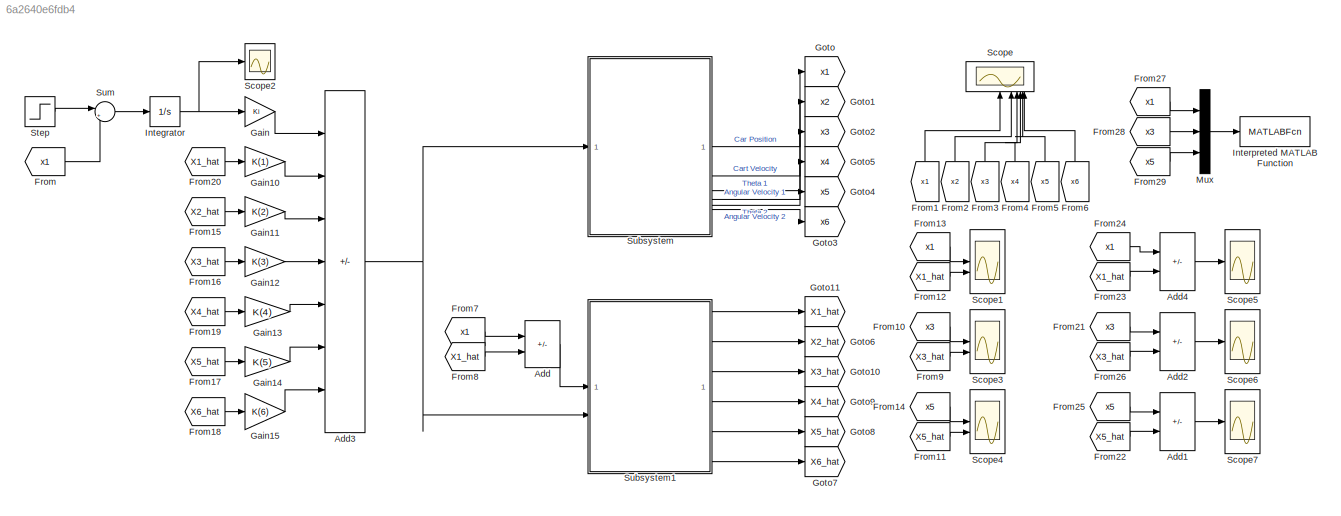
MODEL slx_6a2640e6fdb4
KIND model
CONFIG AbsTol = auto
CONFIG EnableMultiTasking = off
CONFIG FixedStep = auto
CONFIG MaxStep = auto
CONFIG MinStep = auto
CONFIG RelTol = 1e-3
CONFIG SampleTimeConstraint = Unconstrained
CONFIG SolverName = VariableStepAuto
CONFIG StartTime = 0.0
CONFIG StopTime = 10
BLOCK [Sum] Add
  IconShape = rectangular
  Inputs = +-
BLOCK [Sum] Add1
  IconShape = rectangular
  Inputs = +-
BLOCK [Sum] Add2
  IconShape = rectangular
  Inputs = +-
BLOCK [Sum] Add3
  IconShape = rectangular
  Inputs = +------
BLOCK [Sum] Add4
  IconShape = rectangular
  Inputs = +-
BLOCK [From] From
  GotoTag = x1
BLOCK [From] From1
  GotoTag = x1
  NameLocation = right
BLOCK [From] From10
  GotoTag = x3
BLOCK [From] From11
  GotoTag = X5_hat
BLOCK [From] From12
  GotoTag = X1_hat
BLOCK [From] From13
  GotoTag = x1
BLOCK [From] From14
  GotoTag = x5
BLOCK [From] From15
  GotoTag = X2_hat
BLOCK [From] From16
  GotoTag = X3_hat
BLOCK [From] From17
  GotoTag = X5_hat
BLOCK [From] From18
  GotoTag = X6_hat
BLOCK [From] From19
  GotoTag = X4_hat
BLOCK [From] From2
  GotoTag = x2
  NameLocation = right
BLOCK [From] From20
  GotoTag = X1_hat
BLOCK [From] From21
  GotoTag = x3
BLOCK [From] From22
  GotoTag = X5_hat
BLOCK [From] From23
  GotoTag = X1_hat
BLOCK [From] From24
  GotoTag = x1
BLOCK [From] From25
  GotoTag = x5
BLOCK [From] From26
  GotoTag = X3_hat
BLOCK [From] From27
  GotoTag = x1
BLOCK [From] From28
  GotoTag = x3
BLOCK [From] From29
  GotoTag = x5
BLOCK [From] From3
  GotoTag = x3
  NameLocation = right
BLOCK [From] From4
  GotoTag = x4
  NameLocation = right
BLOCK [From] From5
  GotoTag = x5
  NameLocation = right
BLOCK [From] From6
  GotoTag = x6
  NameLocation = right
BLOCK [From] From7
  GotoTag = x1
BLOCK [From] From8
  GotoTag = X1_hat
BLOCK [From] From9
  GotoTag = X3_hat
BLOCK [Gain] Gain
  Gain = Ki
BLOCK [Gain] Gain10
  Gain = K(1)
BLOCK [Gain] Gain11
  Gain = K(2)
BLOCK [Gain] Gain12
  Gain = K(3)
BLOCK [Gain] Gain13
  Gain = K(4)
BLOCK [Gain] Gain14
  Gain = K(5)
BLOCK [Gain] Gain15
  Gain = K(6)
BLOCK [Goto] Goto
  GotoTag = x1
BLOCK [Goto] Goto1
  GotoTag = x2
BLOCK [Goto] Goto10
  GotoTag = X3_hat
BLOCK [Goto] Goto11
  GotoTag = X1_hat
BLOCK [Goto] Goto2
  GotoTag = x3
BLOCK [Goto] Goto3
  GotoTag = x6
BLOCK [Goto] Goto4
  GotoTag = x5
BLOCK [Goto] Goto5
  GotoTag = x4
BLOCK [Goto] Goto6
  GotoTag = X2_hat
BLOCK [Goto] Goto7
  GotoTag = X6_hat
BLOCK [Goto] Goto8
  GotoTag = X5_hat
BLOCK [Goto] Goto9
  GotoTag = X4_hat
BLOCK [Integrator] Integrator
BLOCK [MATLABFcn] Interpreted MATLAB Function
  MATLABFcn = call
  OutputDimensions = 0
BLOCK [Mux] Mux
  DisplayOption = bar
  Inputs = 3
BLOCK [Scope] Scope
  Floating = off
  NameLocation = right
  NumInputPorts = 6
  ScopeSpecificationString = Simulink.scopes.TimeScopeBlockCfg('CurrentConfiguration', extmgr.ConfigurationSet(extmgr.Configuration('Core','General UI',true),extmgr.Configuration('Core','Source UI',true),extmgr.Configuration('Sources','WiredSimulink',true),extmgr.Configuration('Visuals','Time Domain',true,'SerializedDisplays',{struct('MinYLimReal','-2.59465','MaxYLimReal','3.83249','YLabelReal','','MinYLimMag','0.00000','MaxY...<+4956ch>
BLOCK [Scope] Scope1
  Floating = off
  NumInputPorts = 2
  ScopeSpecificationString = Simulink.scopes.TimeScopeBlockCfg('CurrentConfiguration', extmgr.ConfigurationSet(extmgr.Configuration('Core','General UI',true),extmgr.Configuration('Core','Source UI',true),extmgr.Configuration('Sources','WiredSimulink',true,'DataLoggingVariableName','ScopeData1'),extmgr.Configuration('Visuals','Time Domain',true,'SerializedDisplays',{struct('MinYLimReal','-0.03406','MaxYLimReal','0.02335','YLab...<+1487ch>
BLOCK [Scope] Scope2
  Floating = off
  NumInputPorts = 1
  ScopeSpecificationString = Simulink.scopes.TimeScopeBlockCfg('CurrentConfiguration', extmgr.ConfigurationSet(extmgr.Configuration('Core','General UI',true),extmgr.Configuration('Core','Source UI',true),extmgr.Configuration('Sources','WiredSimulink',true,'DataLoggingVariableName','ScopeData6'),extmgr.Configuration('Visuals','Time Domain',true,'SerializedDisplays',{struct('MinYLimReal','-0.24783','MaxYLimReal','2.23048','YLab...<+1468ch>
BLOCK [Scope] Scope3
  Floating = off
  NumInputPorts = 2
  ScopeSpecificationString = Simulink.scopes.TimeScopeBlockCfg('CurrentConfiguration', extmgr.ConfigurationSet(extmgr.Configuration('Core','General UI',true),extmgr.Configuration('Core','Source UI',true),extmgr.Configuration('Sources','WiredSimulink',true,'DataLoggingVariableName','ScopeData1'),extmgr.Configuration('Visuals','Time Domain',true,'SerializedDisplays',{struct('MinYLimReal','-6.63362','MaxYLimReal','4.61203','YLab...<+1482ch>
BLOCK [Scope] Scope4
  Floating = off
  NumInputPorts = 2
  ScopeSpecificationString = Simulink.scopes.TimeScopeBlockCfg('CurrentConfiguration', extmgr.ConfigurationSet(extmgr.Configuration('Core','General UI',true),extmgr.Configuration('Core','Source UI',true),extmgr.Configuration('Sources','WiredSimulink',true,'DataLoggingVariableName','ScopeData2'),extmgr.Configuration('Visuals','Time Domain',true,'SerializedDisplays',{struct('MinYLimReal','-3.08664','MaxYLimReal','4.06296','YLab...<+1482ch>
BLOCK [Scope] Scope5
  Floating = off
  NumInputPorts = 1
  ScopeSpecificationString = Simulink.scopes.TimeScopeBlockCfg('CurrentConfiguration', extmgr.ConfigurationSet(extmgr.Configuration('Core','General UI',true),extmgr.Configuration('Core','Source UI',true),extmgr.Configuration('Sources','WiredSimulink',true,'DataLoggingVariableName','ScopeData3'),extmgr.Configuration('Visuals','Time Domain',true,'SerializedDisplays',{struct('MinYLimReal','-0.00045','MaxYLimReal','0.00116','YLab...<+1462ch>
BLOCK [Scope] Scope6
  Floating = off
  NumInputPorts = 1
  ScopeSpecificationString = Simulink.scopes.TimeScopeBlockCfg('CurrentConfiguration', extmgr.ConfigurationSet(extmgr.Configuration('Core','General UI',true),extmgr.Configuration('Core','Source UI',true),extmgr.Configuration('Sources','WiredSimulink',true,'DataLoggingVariableName','ScopeData4'),extmgr.Configuration('Visuals','Time Domain',true,'SerializedDisplays',{struct('MinYLimReal','-0.00394','MaxYLimReal','0.00372','YLab...<+1512ch>
BLOCK [Scope] Scope7
  Floating = off
  NumInputPorts = 1
  ScopeSpecificationString = Simulink.scopes.TimeScopeBlockCfg('CurrentConfiguration', extmgr.ConfigurationSet(extmgr.Configuration('Core','General UI',true),extmgr.Configuration('Core','Source UI',true),extmgr.Configuration('Sources','WiredSimulink',true,'DataLoggingVariableName','ScopeData5'),extmgr.Configuration('Visuals','Time Domain',true,'SerializedDisplays',{struct('MinYLimReal','-0.00394','MaxYLimReal','0.00372','YLab...<+1512ch>
BLOCK [Step] Step
  SampleTime = 0
  Time = 0
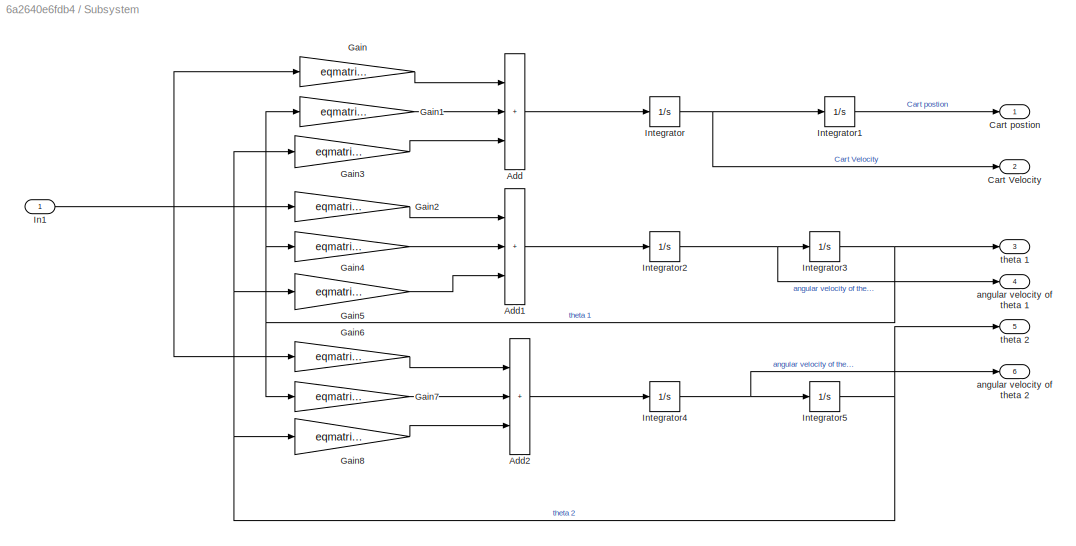
BLOCK [SubSystem] Subsystem
BLOCK [Sum] Subsystem/Add
  IconShape = rectangular
  Inputs = +++
BLOCK [Sum] Subsystem/Add1
  IconShape = rectangular
  Inputs = +++
BLOCK [Sum] Subsystem/Add2
  IconShape = rectangular
  Inputs = +++
BLOCK [Outport] Subsystem/Cart Velocity
  Port = 2
BLOCK [Outport] Subsystem/Cart postion
BLOCK [Gain] Subsystem/Gain
  Gain = eqmatrix(1,1)
BLOCK [Gain] Subsystem/Gain1
  Gain = eqmatrix(1,2)
BLOCK [Gain] Subsystem/Gain2
  Gain = eqmatrix(2,1)
BLOCK [Gain] Subsystem/Gain3
  Gain = eqmatrix(1,3)
BLOCK [Gain] Subsystem/Gain4
  Gain = eqmatrix(2,2)
BLOCK [Gain] Subsystem/Gain5
  Gain = eqmatrix(2,3)
BLOCK [Gain] Subsystem/Gain6
  Gain = eqmatrix(3,1)
BLOCK [Gain] Subsystem/Gain7
  Gain = eqmatrix(3,2)
BLOCK [Gain] Subsystem/Gain8
  Gain = eqmatrix(3,3)
BLOCK [Inport] Subsystem/In1
BLOCK [Integrator] Subsystem/Integrator
BLOCK [Integrator] Subsystem/Integrator1
BLOCK [Integrator] Subsystem/Integrator2
BLOCK [Integrator] Subsystem/Integrator3
BLOCK [Integrator] Subsystem/Integrator4
BLOCK [Integrator] Subsystem/Integrator5
BLOCK [Outport] Subsystem/angular velocity of theta 1
  Port = 4
BLOCK [Outport] Subsystem/angular velocity of theta 2
  Port = 6
BLOCK [Outport] Subsystem/theta 1
  Port = 3
BLOCK [Outport] Subsystem/theta 2
  Port = 5
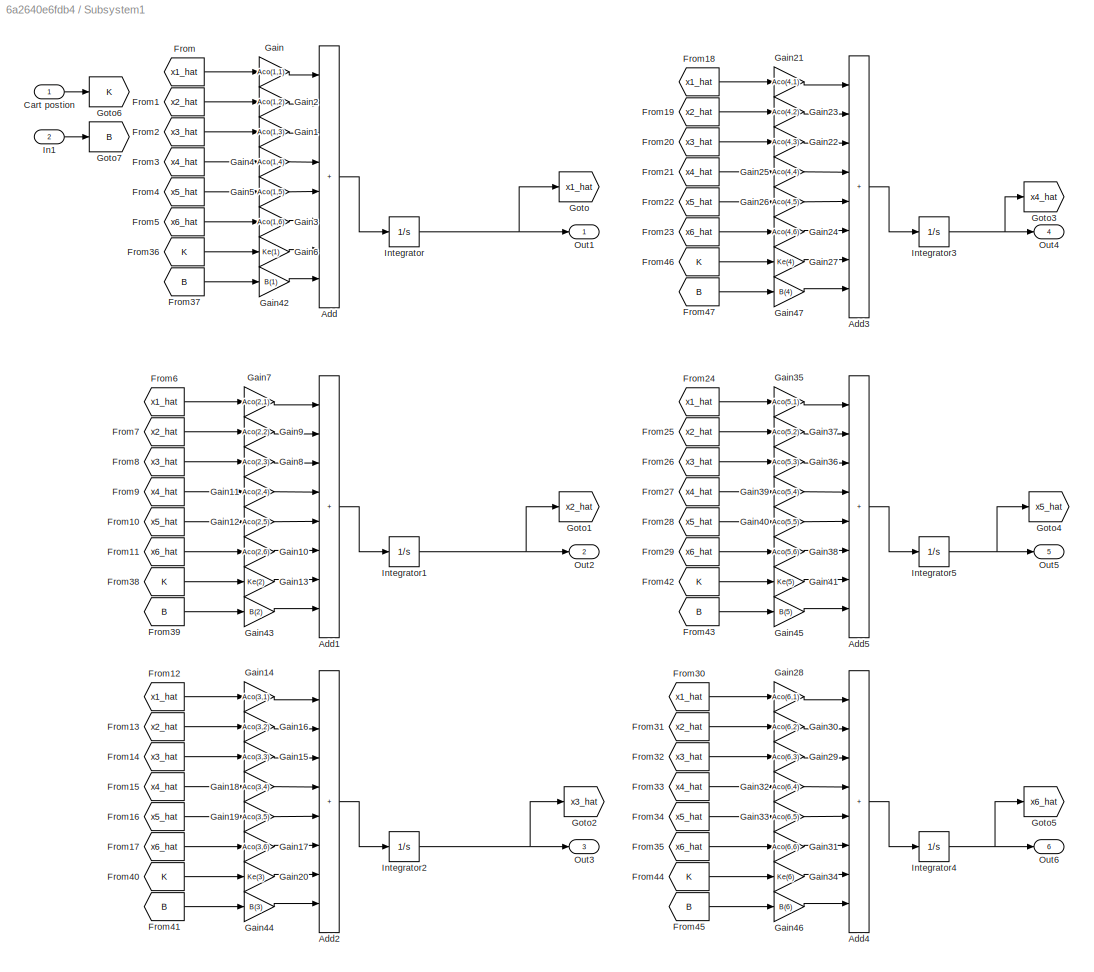
BLOCK [SubSystem] Subsystem1
BLOCK [Sum] Subsystem1/Add
  IconShape = rectangular
  Inputs = ++++++++
BLOCK [Sum] Subsystem1/Add1
  IconShape = rectangular
  Inputs = ++++++++
BLOCK [Sum] Subsystem1/Add2
  IconShape = rectangular
  Inputs = ++++++++
BLOCK [Sum] Subsystem1/Add3
  IconShape = rectangular
  Inputs = ++++++++
BLOCK [Sum] Subsystem1/Add4
  IconShape = rectangular
  Inputs = ++++++++
BLOCK [Sum] Subsystem1/Add5
  IconShape = rectangular
  Inputs = ++++++++
BLOCK [Inport] Subsystem1/Cart postion
BLOCK [From] Subsystem1/From
  GotoTag = x1_hat
BLOCK [From] Subsystem1/From1
  GotoTag = x2_hat
BLOCK [From] Subsystem1/From10
  GotoTag = x5_hat
BLOCK [From] Subsystem1/From11
  GotoTag = x6_hat
BLOCK [From] Subsystem1/From12
  GotoTag = x1_hat
BLOCK [From] Subsystem1/From13
  GotoTag = x2_hat
BLOCK [From] Subsystem1/From14
  GotoTag = x3_hat
BLOCK [From] Subsystem1/From15
  GotoTag = x4_hat
BLOCK [From] Subsystem1/From16
  GotoTag = x5_hat
BLOCK [From] Subsystem1/From17
  GotoTag = x6_hat
BLOCK [From] Subsystem1/From18
  GotoTag = x1_hat
BLOCK [From] Subsystem1/From19
  GotoTag = x2_hat
BLOCK [From] Subsystem1/From2
  GotoTag = x3_hat
BLOCK [From] Subsystem1/From20
  GotoTag = x3_hat
BLOCK [From] Subsystem1/From21
  GotoTag = x4_hat
BLOCK [From] Subsystem1/From22
  GotoTag = x5_hat
BLOCK [From] Subsystem1/From23
  GotoTag = x6_hat
BLOCK [From] Subsystem1/From24
  GotoTag = x1_hat
BLOCK [From] Subsystem1/From25
  GotoTag = x2_hat
BLOCK [From] Subsystem1/From26
  GotoTag = x3_hat
BLOCK [From] Subsystem1/From27
  GotoTag = x4_hat
BLOCK [From] Subsystem1/From28
  GotoTag = x5_hat
BLOCK [From] Subsystem1/From29
  GotoTag = x6_hat
BLOCK [From] Subsystem1/From3
  GotoTag = x4_hat
BLOCK [From] Subsystem1/From30
  GotoTag = x1_hat
BLOCK [From] Subsystem1/From31
  GotoTag = x2_hat
BLOCK [From] Subsystem1/From32
  GotoTag = x3_hat
BLOCK [From] Subsystem1/From33
  GotoTag = x4_hat
BLOCK [From] Subsystem1/From34
  GotoTag = x5_hat
BLOCK [From] Subsystem1/From35
  GotoTag = x6_hat
BLOCK [From] Subsystem1/From36
  GotoTag = K
BLOCK [From] Subsystem1/From37
  GotoTag = B
BLOCK [From] Subsystem1/From38
  GotoTag = K
BLOCK [From] Subsystem1/From39
  GotoTag = B
BLOCK [From] Subsystem1/From4
  GotoTag = x5_hat
BLOCK [From] Subsystem1/From40
  GotoTag = K
BLOCK [From] Subsystem1/From41
  GotoTag = B
BLOCK [From] Subsystem1/From42
  GotoTag = K
BLOCK [From] Subsystem1/From43
  GotoTag = B
BLOCK [From] Subsystem1/From44
  GotoTag = K
BLOCK [From] Subsystem1/From45
  GotoTag = B
BLOCK [From] Subsystem1/From46
  GotoTag = K
BLOCK [From] Subsystem1/From47
  GotoTag = B
BLOCK [From] Subsystem1/From5
  GotoTag = x6_hat
BLOCK [From] Subsystem1/From6
  GotoTag = x1_hat
BLOCK [From] Subsystem1/From7
  GotoTag = x2_hat
BLOCK [From] Subsystem1/From8
  GotoTag = x3_hat
BLOCK [From] Subsystem1/From9
  GotoTag = x4_hat
BLOCK [Gain] Subsystem1/Gain
  Gain = Aco(1,1)
BLOCK [Gain] Subsystem1/Gain1
  Gain = Aco(1,3)
BLOCK [Gain] Subsystem1/Gain10
  Gain = Aco(2,6)
BLOCK [Gain] Subsystem1/Gain11
  Gain = Aco(2,4)
BLOCK [Gain] Subsystem1/Gain12
  Gain = Aco(2,5)
BLOCK [Gain] Subsystem1/Gain13
  Gain = Ke(2)
BLOCK [Gain] Subsystem1/Gain14
  Gain = Aco(3,1)
BLOCK [Gain] Subsystem1/Gain15
  Gain = Aco(3,3)
BLOCK [Gain] Subsystem1/Gain16
  Gain = Aco(3,2)
BLOCK [Gain] Subsystem1/Gain17
  Gain = Aco(3,6)
BLOCK [Gain] Subsystem1/Gain18
  Gain = Aco(3,4)
BLOCK [Gain] Subsystem1/Gain19
  Gain = Aco(3,5)
BLOCK [Gain] Subsystem1/Gain2
  Gain = Aco(1,2)
BLOCK [Gain] Subsystem1/Gain20
  Gain = Ke(3)
BLOCK [Gain] Subsystem1/Gain21
  Gain = Aco(4,1)
BLOCK [Gain] Subsystem1/Gain22
  Gain = Aco(4,3)
BLOCK [Gain] Subsystem1/Gain23
  Gain = Aco(4,2)
BLOCK [Gain] Subsystem1/Gain24
  Gain = Aco(4,6)
BLOCK [Gain] Subsystem1/Gain25
  Gain = Aco(4,4)
BLOCK [Gain] Subsystem1/Gain26
  Gain = Aco(4,5)
BLOCK [Gain] Subsystem1/Gain27
  Gain = Ke(4)
BLOCK [Gain] Subsystem1/Gain28
  Gain = Aco(6,1)
BLOCK [Gain] Subsystem1/Gain29
  Gain = Aco(6,3)
BLOCK [Gain] Subsystem1/Gain3
  Gain = Aco(1,6)
BLOCK [Gain] Subsystem1/Gain30
  Gain = Aco(6,2)
BLOCK [Gain] Subsystem1/Gain31
  Gain = Aco(6,6)
BLOCK [Gain] Subsystem1/Gain32
  Gain = Aco(6,4)
BLOCK [Gain] Subsystem1/Gain33
  Gain = Aco(6,5)
BLOCK [Gain] Subsystem1/Gain34
  Gain = Ke(6)
BLOCK [Gain] Subsystem1/Gain35
  Gain = Aco(5,1)
BLOCK [Gain] Subsystem1/Gain36
  Gain = Aco(5,3)
BLOCK [Gain] Subsystem1/Gain37
  Gain = Aco(5,2)
BLOCK [Gain] Subsystem1/Gain38
  Gain = Aco(5,6)
BLOCK [Gain] Subsystem1/Gain39
  Gain = Aco(5,4)
BLOCK [Gain] Subsystem1/Gain4
  Gain = Aco(1,4)
BLOCK [Gain] Subsystem1/Gain40
  Gain = Aco(5,5)
BLOCK [Gain] Subsystem1/Gain41
  Gain = Ke(5)
BLOCK [Gain] Subsystem1/Gain42
  Gain = B(1)
BLOCK [Gain] Subsystem1/Gain43
  Gain = B(2)
BLOCK [Gain] Subsystem1/Gain44
  Gain = B(3)
BLOCK [Gain] Subsystem1/Gain45
  Gain = B(5)
BLOCK [Gain] Subsystem1/Gain46
  Gain = B(6)
BLOCK [Gain] Subsystem1/Gain47
  Gain = B(4)
BLOCK [Gain] Subsystem1/Gain5
  Gain = Aco(1,5)
BLOCK [Gain] Subsystem1/Gain6
  Gain = Ke(1)
BLOCK [Gain] Subsystem1/Gain7
  Gain = Aco(2,1)
BLOCK [Gain] Subsystem1/Gain8
  Gain = Aco(2,3)
BLOCK [Gain] Subsystem1/Gain9
  Gain = Aco(2,2)
BLOCK [Goto] Subsystem1/Goto
  GotoTag = x1_hat
BLOCK [Goto] Subsystem1/Goto1
  GotoTag = x2_hat
BLOCK [Goto] Subsystem1/Goto2
  GotoTag = x3_hat
BLOCK [Goto] Subsystem1/Goto3
  GotoTag = x4_hat
BLOCK [Goto] Subsystem1/Goto4
  GotoTag = x5_hat
BLOCK [Goto] Subsystem1/Goto5
  GotoTag = x6_hat
BLOCK [Goto] Subsystem1/Goto6
  GotoTag = K
BLOCK [Goto] Subsystem1/Goto7
  GotoTag = B
BLOCK [Inport] Subsystem1/In1
  Port = 2
BLOCK [Integrator] Subsystem1/Integrator
  InitialCondition = -0.001
BLOCK [Integrator] Subsystem1/Integrator1
BLOCK [Integrator] Subsystem1/Integrator2
  InitialCondition = 0.079
BLOCK [Integrator] Subsystem1/Integrator3
BLOCK [Integrator] Subsystem1/Integrator4
BLOCK [Integrator] Subsystem1/Integrator5
  InitialCondition = 0.079
BLOCK [Outport] Subsystem1/Out1
BLOCK [Outport] Subsystem1/Out2
  Port = 2
BLOCK [Outport] Subsystem1/Out3
  Port = 3
BLOCK [Outport] Subsystem1/Out4
  Port = 4
BLOCK [Outport] Subsystem1/Out5
  Port = 5
BLOCK [Outport] Subsystem1/Out6
  Port = 6
BLOCK [Sum] Sum
  Inputs = |+-
  NameLocation = top
LINE Add1:1 -> Scope7:1
LINE Add2:1 -> Scope6:1
NET Add3:1 -> Subsystem1:2, Subsystem:1
LINE Add4:1 -> Scope5:1
LINE Add:1 -> Subsystem1:1
LINE From10:1 -> Scope3:1
LINE From11:1 -> Scope4:2
LINE From12:1 -> Scope1:2
LINE From13:1 -> Scope1:1
LINE From14:1 -> Scope4:1
LINE From15:1 -> Gain11:1
LINE From16:1 -> Gain12:1
LINE From17:1 -> Gain14:1
LINE From18:1 -> Gain15:1
LINE From19:1 -> Gain13:1
LINE From1:1 -> Scope:1
LINE From20:1 -> Gain10:1
LINE From21:1 -> Add2:1
LINE From22:1 -> Add1:2
LINE From23:1 -> Add4:2
LINE From24:1 -> Add4:1
LINE From25:1 -> Add1:1
LINE From26:1 -> Add2:2
LINE From27:1 -> Mux:1
LINE From28:1 -> Mux:2
LINE From29:1 -> Mux:3
LINE From2:1 -> Scope:2
LINE From3:1 -> Scope:3
LINE From4:1 -> Scope:4
LINE From5:1 -> Scope:5
LINE From6:1 -> Scope:6
LINE From7:1 -> Add:1
LINE From8:1 -> Add:2
LINE From9:1 -> Scope3:2
LINE From:1 -> Sum:2
LINE Gain10:1 -> Add3:2
LINE Gain11:1 -> Add3:3
LINE Gain12:1 -> Add3:4
LINE Gain13:1 -> Add3:5
LINE Gain14:1 -> Add3:6
LINE Gain15:1 -> Add3:7
LINE Gain:1 -> Add3:1
NET Integrator:1 -> Gain:1, Scope2:1
LINE Mux:1 -> Interpreted MATLAB Function:1
LINE Step:1 -> Sum:1
LINE Subsystem/Add1:1 -> Subsystem/Integrator2:1
LINE Subsystem/Add2:1 -> Subsystem/Integrator4:1
LINE Subsystem/Add:1 -> Subsystem/Integrator:1
LINE Subsystem/Gain1:1 -> Subsystem/Add:2
LINE Subsystem/Gain2:1 -> Subsystem/Add1:1
LINE Subsystem/Gain3:1 -> Subsystem/Add:3
LINE Subsystem/Gain4:1 -> Subsystem/Add1:2
LINE Subsystem/Gain5:1 -> Subsystem/Add1:3
LINE Subsystem/Gain6:1 -> Subsystem/Add2:1
LINE Subsystem/Gain7:1 -> Subsystem/Add2:2
LINE Subsystem/Gain8:1 -> Subsystem/Add2:3
LINE Subsystem/Gain:1 -> Subsystem/Add:1
NET Subsystem/In1:1 -> Subsystem/Gain2:1, Subsystem/Gain6:1, Subsystem/Gain:1
LINE Subsystem/Integrator1:1 -> Subsystem/Cart postion:1
NET Subsystem/Integrator2:1 -> Subsystem/Integrator3:1, Subsystem/angular velocity of theta 1:1
NET Subsystem/Integrator3:1 -> Subsystem/Gain1:1, Subsystem/Gain4:1, Subsystem/Gain7:1, Subsystem/theta 1:1
NET Subsystem/Integrator4:1 -> Subsystem/Integrator5:1, Subsystem/angular velocity of theta 2:1
NET Subsystem/Integrator5:1 -> Subsystem/Gain3:1, Subsystem/Gain5:1, Subsystem/Gain8:1, Subsystem/theta 2:1
NET Subsystem/Integrator:1 -> Subsystem/Cart Velocity:1, Subsystem/Integrator1:1
LINE Subsystem1/Add1:1 -> Subsystem1/Integrator1:1
LINE Subsystem1/Add2:1 -> Subsystem1/Integrator2:1
LINE Subsystem1/Add3:1 -> Subsystem1/Integrator3:1
LINE Subsystem1/Add4:1 -> Subsystem1/Integrator4:1
LINE Subsystem1/Add5:1 -> Subsystem1/Integrator5:1
LINE Subsystem1/Add:1 -> Subsystem1/Integrator:1
LINE Subsystem1/Cart postion:1 -> Subsystem1/Goto6:1
LINE Subsystem1/From10:1 -> Subsystem1/Gain12:1
LINE Subsystem1/From11:1 -> Subsystem1/Gain10:1
LINE Subsystem1/From12:1 -> Subsystem1/Gain14:1
LINE Subsystem1/From13:1 -> Subsystem1/Gain16:1
LINE Subsystem1/From14:1 -> Subsystem1/Gain15:1
LINE Subsystem1/From15:1 -> Subsystem1/Gain18:1
LINE Subsystem1/From16:1 -> Subsystem1/Gain19:1
LINE Subsystem1/From17:1 -> Subsystem1/Gain17:1
LINE Subsystem1/From18:1 -> Subsystem1/Gain21:1
LINE Subsystem1/From19:1 -> Subsystem1/Gain23:1
LINE Subsystem1/From1:1 -> Subsystem1/Gain2:1
LINE Subsystem1/From20:1 -> Subsystem1/Gain22:1
LINE Subsystem1/From21:1 -> Subsystem1/Gain25:1
LINE Subsystem1/From22:1 -> Subsystem1/Gain26:1
LINE Subsystem1/From23:1 -> Subsystem1/Gain24:1
LINE Subsystem1/From24:1 -> Subsystem1/Gain35:1
LINE Subsystem1/From25:1 -> Subsystem1/Gain37:1
LINE Subsystem1/From26:1 -> Subsystem1/Gain36:1
LINE Subsystem1/From27:1 -> Subsystem1/Gain39:1
LINE Subsystem1/From28:1 -> Subsystem1/Gain40:1
LINE Subsystem1/From29:1 -> Subsystem1/Gain38:1
LINE Subsystem1/From2:1 -> Subsystem1/Gain1:1
LINE Subsystem1/From30:1 -> Subsystem1/Gain28:1
LINE Subsystem1/From31:1 -> Subsystem1/Gain30:1
LINE Subsystem1/From32:1 -> Subsystem1/Gain29:1
LINE Subsystem1/From33:1 -> Subsystem1/Gain32:1
LINE Subsystem1/From34:1 -> Subsystem1/Gain33:1
LINE Subsystem1/From35:1 -> Subsystem1/Gain31:1
LINE Subsystem1/From36:1 -> Subsystem1/Gain6:1
LINE Subsystem1/From37:1 -> Subsystem1/Gain42:1
LINE Subsystem1/From38:1 -> Subsystem1/Gain13:1
LINE Subsystem1/From39:1 -> Subsystem1/Gain43:1
LINE Subsystem1/From3:1 -> Subsystem1/Gain4:1
LINE Subsystem1/From40:1 -> Subsystem1/Gain20:1
LINE Subsystem1/From41:1 -> Subsystem1/Gain44:1
LINE Subsystem1/From42:1 -> Subsystem1/Gain41:1
LINE Subsystem1/From43:1 -> Subsystem1/Gain45:1
LINE Subsystem1/From44:1 -> Subsystem1/Gain34:1
LINE Subsystem1/From45:1 -> Subsystem1/Gain46:1
LINE Subsystem1/From46:1 -> Subsystem1/Gain27:1
LINE Subsystem1/From47:1 -> Subsystem1/Gain47:1
LINE Subsystem1/From4:1 -> Subsystem1/Gain5:1
LINE Subsystem1/From5:1 -> Subsystem1/Gain3:1
LINE Subsystem1/From6:1 -> Subsystem1/Gain7:1
LINE Subsystem1/From7:1 -> Subsystem1/Gain9:1
LINE Subsystem1/From8:1 -> Subsystem1/Gain8:1
LINE Subsystem1/From9:1 -> Subsystem1/Gain11:1
LINE Subsystem1/From:1 -> Subsystem1/Gain:1
LINE Subsystem1/Gain10:1 -> Subsystem1/Add1:6
LINE Subsystem1/Gain11:1 -> Subsystem1/Add1:4
LINE Subsystem1/Gain12:1 -> Subsystem1/Add1:5
LINE Subsystem1/Gain13:1 -> Subsystem1/Add1:7
LINE Subsystem1/Gain14:1 -> Subsystem1/Add2:1
LINE Subsystem1/Gain15:1 -> Subsystem1/Add2:3
LINE Subsystem1/Gain16:1 -> Subsystem1/Add2:2
LINE Subsystem1/Gain17:1 -> Subsystem1/Add2:6
LINE Subsystem1/Gain18:1 -> Subsystem1/Add2:4
LINE Subsystem1/Gain19:1 -> Subsystem1/Add2:5
LINE Subsystem1/Gain1:1 -> Subsystem1/Add:3
LINE Subsystem1/Gain20:1 -> Subsystem1/Add2:7
LINE Subsystem1/Gain21:1 -> Subsystem1/Add3:1
LINE Subsystem1/Gain22:1 -> Subsystem1/Add3:3
LINE Subsystem1/Gain23:1 -> Subsystem1/Add3:2
LINE Subsystem1/Gain24:1 -> Subsystem1/Add3:6
LINE Subsystem1/Gain25:1 -> Subsystem1/Add3:4
LINE Subsystem1/Gain26:1 -> Subsystem1/Add3:5
LINE Subsystem1/Gain27:1 -> Subsystem1/Add3:7
LINE Subsystem1/Gain28:1 -> Subsystem1/Add4:1
LINE Subsystem1/Gain29:1 -> Subsystem1/Add4:3
LINE Subsystem1/Gain2:1 -> Subsystem1/Add:2
LINE Subsystem1/Gain30:1 -> Subsystem1/Add4:2
LINE Subsystem1/Gain31:1 -> Subsystem1/Add4:6
LINE Subsystem1/Gain32:1 -> Subsystem1/Add4:4
LINE Subsystem1/Gain33:1 -> Subsystem1/Add4:5
LINE Subsystem1/Gain34:1 -> Subsystem1/Add4:7
LINE Subsystem1/Gain35:1 -> Subsystem1/Add5:1
LINE Subsystem1/Gain36:1 -> Subsystem1/Add5:3
LINE Subsystem1/Gain37:1 -> Subsystem1/Add5:2
LINE Subsystem1/Gain38:1 -> Subsystem1/Add5:6
LINE Subsystem1/Gain39:1 -> Subsystem1/Add5:4
LINE Subsystem1/Gain3:1 -> Subsystem1/Add:6
LINE Subsystem1/Gain40:1 -> Subsystem1/Add5:5
LINE Subsystem1/Gain41:1 -> Subsystem1/Add5:7
LINE Subsystem1/Gain42:1 -> Subsystem1/Add:8
LINE Subsystem1/Gain43:1 -> Subsystem1/Add1:8
LINE Subsystem1/Gain44:1 -> Subsystem1/Add2:8
LINE Subsystem1/Gain45:1 -> Subsystem1/Add5:8
LINE Subsystem1/Gain46:1 -> Subsystem1/Add4:8
LINE Subsystem1/Gain47:1 -> Subsystem1/Add3:8
LINE Subsystem1/Gain4:1 -> Subsystem1/Add:4
LINE Subsystem1/Gain5:1 -> Subsystem1/Add:5
LINE Subsystem1/Gain6:1 -> Subsystem1/Add:7
LINE Subsystem1/Gain7:1 -> Subsystem1/Add1:1
LINE Subsystem1/Gain8:1 -> Subsystem1/Add1:3
LINE Subsystem1/Gain9:1 -> Subsystem1/Add1:2
LINE Subsystem1/Gain:1 -> Subsystem1/Add:1
LINE Subsystem1/In1:1 -> Subsystem1/Goto7:1
NET Subsystem1/Integrator1:1 -> Subsystem1/Goto1:1, Subsystem1/Out2:1
NET Subsystem1/Integrator2:1 -> Subsystem1/Goto2:1, Subsystem1/Out3:1
NET Subsystem1/Integrator3:1 -> Subsystem1/Goto3:1, Subsystem1/Out4:1
NET Subsystem1/Integrator4:1 -> Subsystem1/Goto5:1, Subsystem1/Out6:1
NET Subsystem1/Integrator5:1 -> Subsystem1/Goto4:1, Subsystem1/Out5:1
NET Subsystem1/Integrator:1 -> Subsystem1/Goto:1, Subsystem1/Out1:1
LINE Subsystem1:1 -> Goto11:1
LINE Subsystem1:2 -> Goto6:1
LINE Subsystem1:3 -> Goto10:1
LINE Subsystem1:4 -> Goto9:1
LINE Subsystem1:5 -> Goto8:1
LINE Subsystem1:6 -> Goto7:1
LINE Subsystem:1 -> Goto:1
LINE Subsystem:2 -> Goto1:1
LINE Subsystem:3 -> Goto2:1
LINE Subsystem:4 -> Goto5:1
LINE Subsystem:5 -> Goto4:1
LINE Subsystem:6 -> Goto3:1
LINE Sum:1 -> Integrator:1
note: NET lines group one-source signal fan-out (src -> all destinations, sorted); 1:1 wires keep LINE
